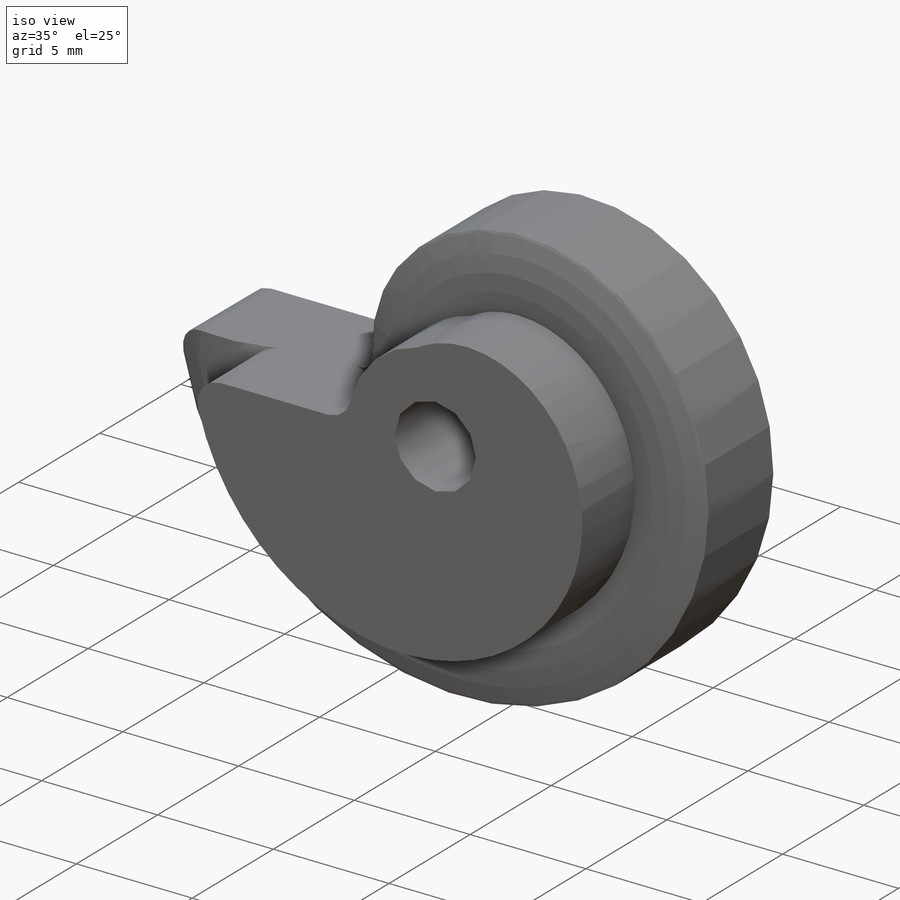
[diagram: iso view]
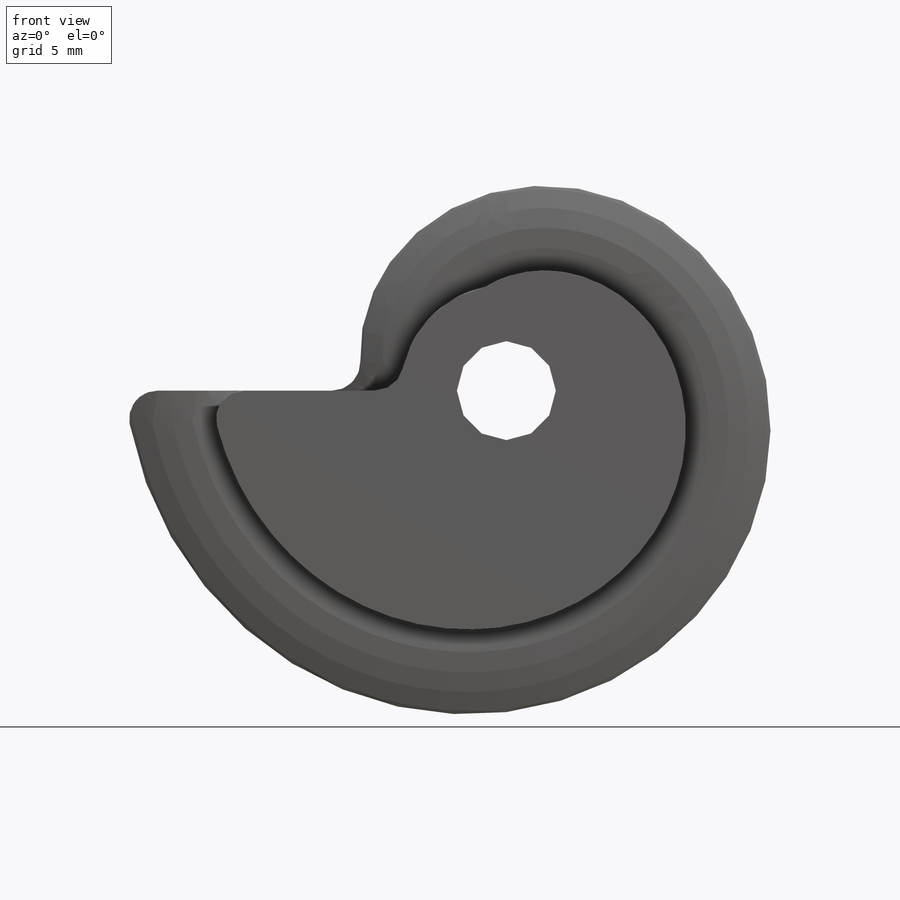
[diagram: front view]
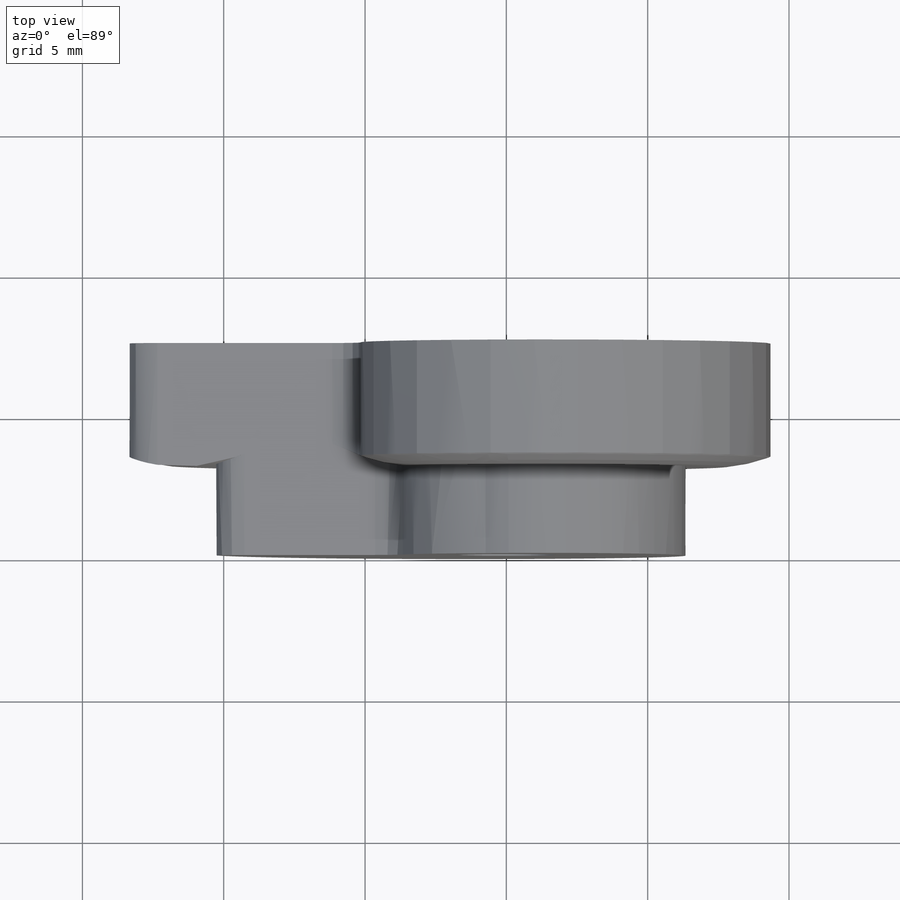
[diagram: top view]
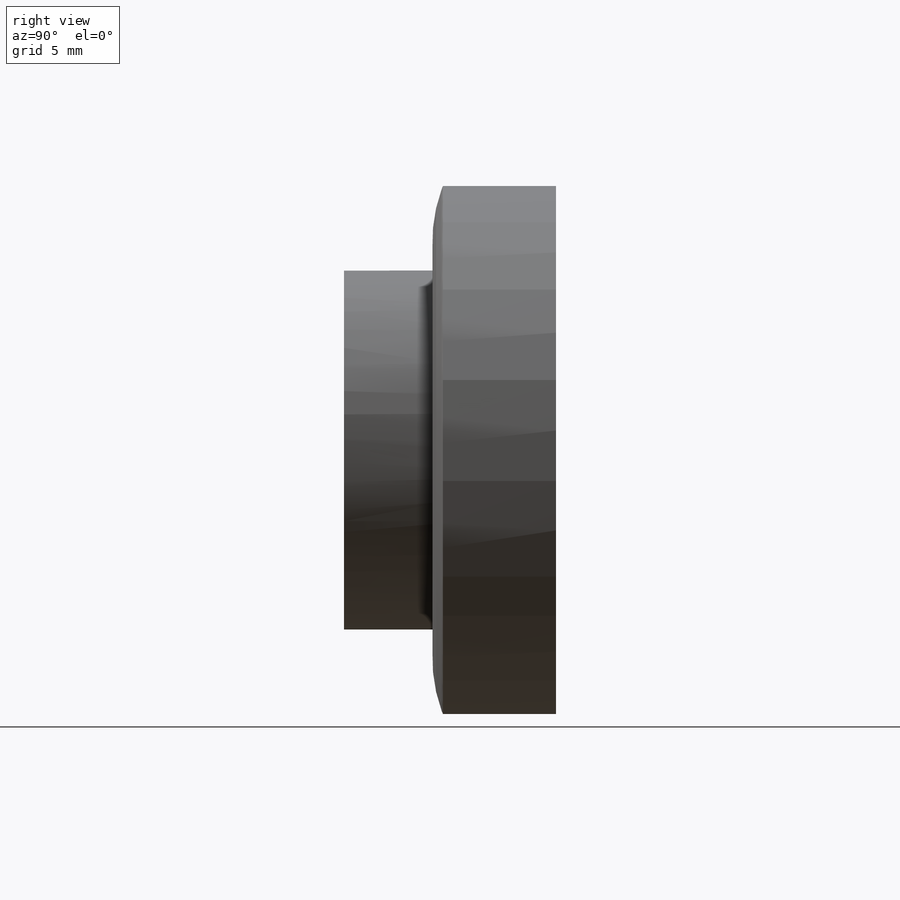
[diagram: right view]
SOLIDWORKS PART (.sldprt)
format: sldprt  version: not decoded by parser v0  size: 285,696 bytes
history: native  units: mm
features: sketch x7, extrude x2, hole x2, material x1, helix x1, sweep x1, fillet x1 (+11 scaffold rows collapsed)
feature tree (26):
  scaffold x11  (default folders/planes/origin — collapsed)
  material  "Material <not specified>"
  sketch  "Sketch1"  dims[D1=3.5mm D2=2.0mm]
  extrude  "Boss-Cylindar"  Depth=3.5mm
  sketch  "Sketch2"  dims[D1=1.0mm]
  helix  "Helix/Spiral1"  Pitch=8.5mm
  sketch  "Sketch3"  dims[D1=4.0mm D2=0.75mm D3=4.0mm D4=0.0mm D5=13.5mm]
  sweep  "Sweep1"
  sketch  "Sketch4"
  extrude  "Boss-Fill in Spiral"  [1 undecoded]
  sketch  "Sketch5"
  hole  "Cut-Screw Hole"  [1 undecoded]
  sketch  "Sketch6"  dims[c1.D2=~5.041599mm c2.D2=140.0deg c2.D1=3.0mm]
  sketch  "Sketch7"
  hole  "Cut-Recut Screw Hole"  [1 undecoded]
  fillet  "Fillet-Start End Edges"  Radius=1mm
decode coverage: 7 of 14 modeling features carry decoded parameters
note: ~ marks probable driven/reference dimensions
note: 3 parameter values undecoded
summary: no parameter record found for 3 features
note: suppression state not decoded; provenance and decode notes live in map.json
